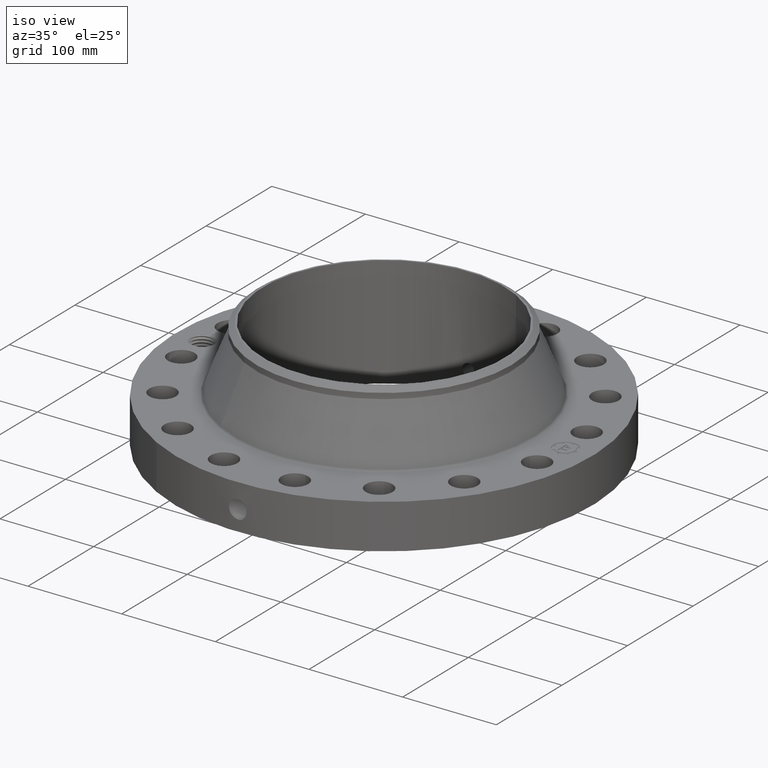
[diagram: clean part render]
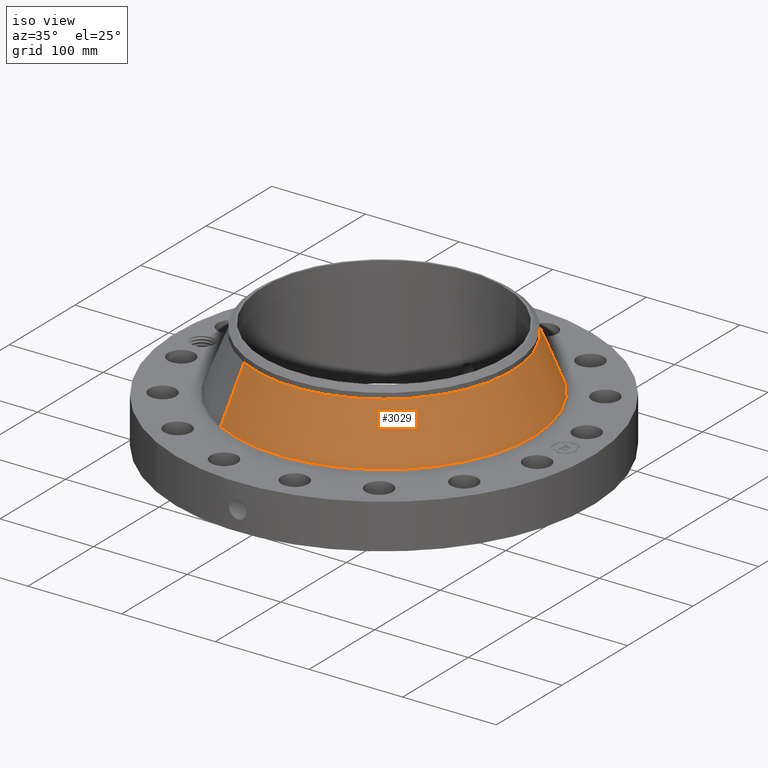
[diagram: same view with one face highlighted and labeled with its STEP entity id]
A machine part, iso view. The second image highlights one B-rep face of the part: STEP entity #3029.
In plain terms, the highlighted conical surface has half-angle 21.877 deg.
Its self-contained STEP definition (entity closure, byte-faithful):
#2332=AXIS2_PLACEMENT_3D('Circle Axis2P3D',#2330,#2331,$) ;
#3002=AXIS2_PLACEMENT_3D('Cone Axis2P3D',#2999,#3000,#3001) ;
#3013=AXIS2_PLACEMENT_3D('Circle Axis2P3D',#3011,#3012,$) ;
#2327=CARTESIAN_POINT('Vertex',(3.01068236931,5.51101711099,2.01528688262)) ;
#2330=CARTESIAN_POINT('Axis2P3D Location',(0.,0.,2.01528688262)) ;
#2334=CARTESIAN_POINT('Vertex',(-3.01068236931,-5.51101711099,2.01528688262)) ;
#2999=CARTESIAN_POINT('Axis2P3D Location',(0.,0.,4.26862959014)) ;
#3004=CARTESIAN_POINT('Line Origine',(2.79379731966,5.11401169058,3.14195823638)) ;
#3008=CARTESIAN_POINT('Vertex',(2.57691227001,4.71700627018,4.26862959014)) ;
#3011=CARTESIAN_POINT('Axis2P3D Location',(0.,0.,4.26862959014)) ;
#3015=CARTESIAN_POINT('Vertex',(-2.57691227001,-4.71700627018,4.26862959014)) ;
#3018=CARTESIAN_POINT('Line Origine',(-2.79379731966,-5.11401169058,3.14195823638)) ;
#2331=DIRECTION('Axis2P3D Direction',(0.,0.,-0.0393700787402)) ;
#3000=DIRECTION('Axis2P3D Direction',(0.,0.,-0.0393700787402)) ;
#3001=DIRECTION('Axis2P3D XDirection',(-0.0188750212049,-0.0345504945626,0.)) ;
#3005=DIRECTION('Vector Direction',(0.00703300865759,0.0128738359944,-0.0365349727798)) ;
#3012=DIRECTION('Axis2P3D Direction',(0.,0.,-0.0393700787402)) ;
#3019=DIRECTION('Vector Direction',(-0.00703300865759,-0.0128738359944,-0.0365349727798)) ;
#3006=VECTOR('Line Direction',#3005,0.0393700787402) ;
#3020=VECTOR('Line Direction',#3019,0.0393700787402) ;
#3024=ORIENTED_EDGE('',*,*,#2336,.F.) ;
#3025=ORIENTED_EDGE('',*,*,#3010,.T.) ;
#3026=ORIENTED_EDGE('',*,*,#3017,.T.) ;
#3027=ORIENTED_EDGE('',*,*,#3022,.F.) ;
#3029=ADVANCED_FACE('PartBody',(#3028),#3003,.T.) ;
#2333=CIRCLE('generated circle',#2332,6.27977053136) ;
#3014=CIRCLE('generated circle',#3013,5.37500000002) ;
#3003=CONICAL_SURFACE('Cone',#3002,5.37500000002,0.381819232535) ;
#2336=EDGE_CURVE('',#2328,#2335,#2333,.T.) ;
#3010=EDGE_CURVE('',#2328,#3009,#3007,.F.) ;
#3017=EDGE_CURVE('',#3009,#3016,#3014,.T.) ;
#3022=EDGE_CURVE('',#2335,#3016,#3021,.F.) ;
#3023=EDGE_LOOP('',(#3024,#3025,#3026,#3027)) ;
#3028=FACE_OUTER_BOUND('',#3023,.T.) ;
#3007=LINE('Line',#3004,#3006) ;
#3021=LINE('Line',#3018,#3020) ;
#2328=VERTEX_POINT('',#2327) ;
#2335=VERTEX_POINT('',#2334) ;
#3009=VERTEX_POINT('',#3008) ;
#3016=VERTEX_POINT('',#3015) ;